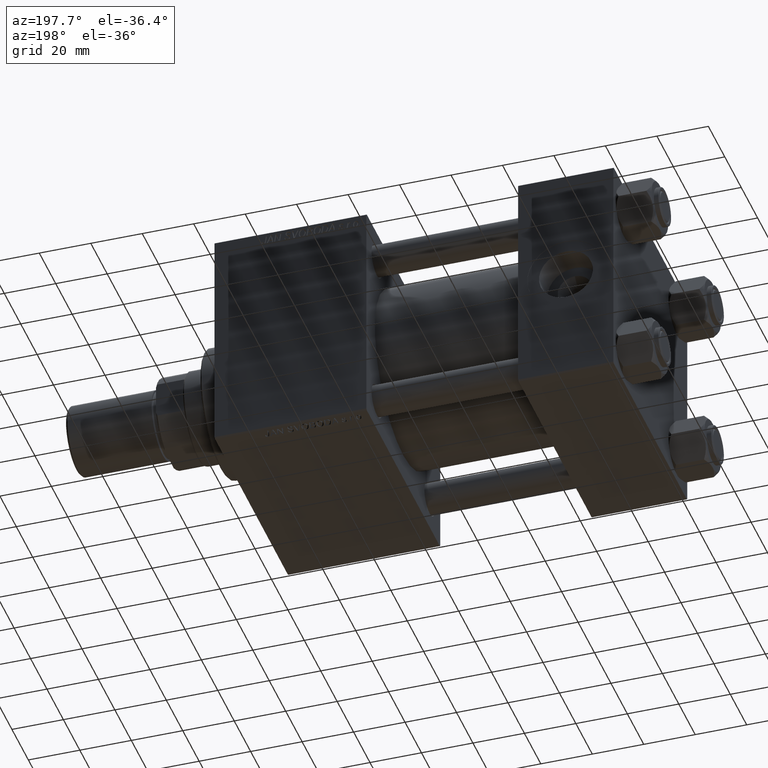
[diagram: clean part render]
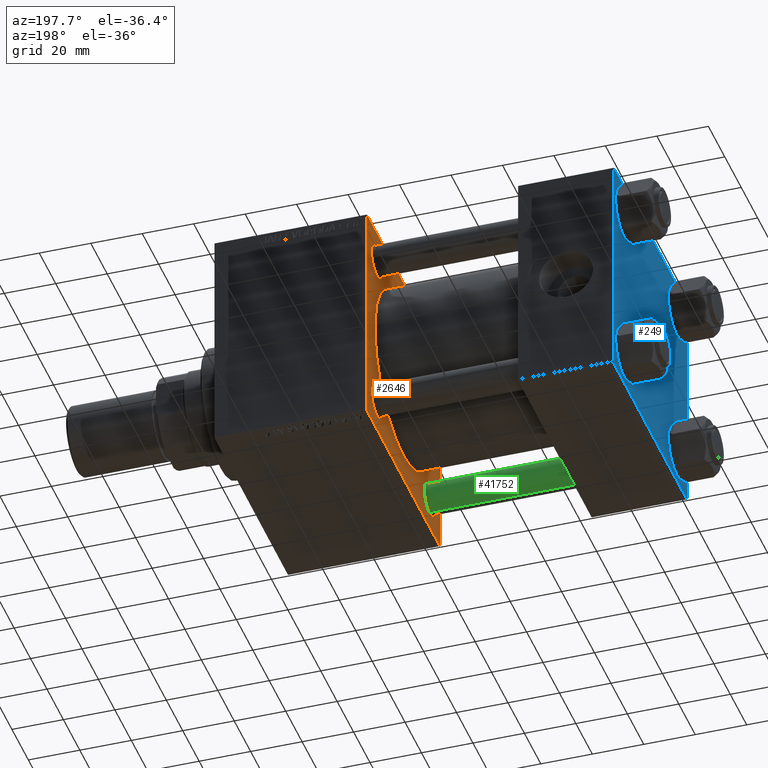
[diagram: same view with three faces highlighted in distinct colors, each labeled with its STEP entity id]
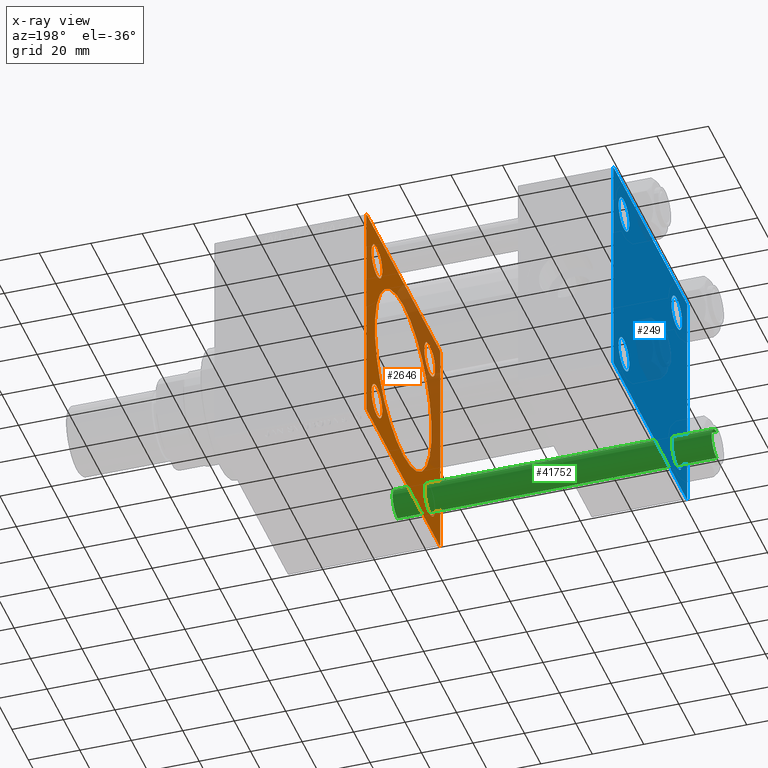
[diagram: x-ray of the same camera — body ghosted, the three highlighted faces saturated]
A machine part, auxiliary view with three faces highlighted in distinct colors.
The next image is the same camera in x-ray (body ghosted, the three faces saturated) — at least one of them is partly hidden behind the body in this view.
Their STEP definitions:

[orange] entity #2646 — the highlighted planar face has unit normal (-1, 0, 0).
#44 = EDGE_CURVE ( 'NONE', #40149, #12854, #29822, .T. ) ;
#64 = CARTESIAN_POINT ( 'NONE',  ( 96.00000000000000000, -44.50000000000000000, 45.00000000000000000 ) ) ;
#516 = VERTEX_POINT ( 'NONE', #28899 ) ;
#825 = CARTESIAN_POINT ( 'NONE',  ( 96.00000000000000000, -32.14999999999997726, -32.15000000000000568 ) ) ;
#902 = LINE ( 'NONE', #48311, #37023 ) ;
#1887 = DIRECTION ( 'NONE',  ( 1.000000000000000000, -0.000000000000000000, 0.000000000000000000 ) ) ;
#2131 = DIRECTION ( 'NONE',  ( 0.000000000000000000, 0.000000000000000000, 1.000000000000000000 ) ) ;
#2427 = LINE ( 'NONE', #7011, #29619 ) ;
#2492 = EDGE_CURVE ( 'NONE', #16709, #37431, #19032, .T. ) ;
#2646 = ADVANCED_FACE ( 'NONE', ( #47948, #32584, #43348, #35668, #28732, #8480 ), #24384, .T. ) ;
#2668 = DIRECTION ( 'NONE',  ( 1.000000000000000000, 0.000000000000000000, 0.000000000000000000 ) ) ;
#2892 = LINE ( 'NONE', #6731, #33566 ) ;
#3622 = VECTOR ( 'NONE', #14967, 1000.000000000000114 ) ;
#4280 = DIRECTION ( 'NONE',  ( 1.000000000000000000, -0.000000000000000000, 0.000000000000000000 ) ) ;
#4644 = DIRECTION ( 'NONE',  ( -0.000000000000000000, 0.000000000000000000, 1.000000000000000000 ) ) ;
#4975 = EDGE_CURVE ( 'NONE', #10743, #13253, #902, .T. ) ;
#5159 = CARTESIAN_POINT ( 'NONE',  ( 96.00000000000000000, 0.000000000000000000, 0.000000000000000000 ) ) ;
#5418 = CARTESIAN_POINT ( 'NONE',  ( 96.00000000000000000, -32.14999999999997726, 32.15000000000000568 ) ) ;
#6157 = CIRCLE ( 'NONE', #11032, 6.500000000000019540 ) ;
#6273 = VECTOR ( 'NONE', #16155, 1000.000000000000000 ) ;
#6731 = CARTESIAN_POINT ( 'NONE',  ( 96.00000000000000000, 45.00000000000000000, -44.99999999999998579 ) ) ;
#6752 = DIRECTION ( 'NONE',  ( 0.000000000000000000, -0.7071067811865474617, 0.7071067811865474617 ) ) ;
#7011 = CARTESIAN_POINT ( 'NONE',  ( 96.00000000000000000, 45.00000000000000000, 45.00000000000001421 ) ) ;
#7839 = ORIENTED_EDGE ( 'NONE', *, *, #8894, .T. ) ;
#8480 = FACE_OUTER_BOUND ( 'NONE', #33915, .T. ) ;
#8894 = EDGE_CURVE ( 'NONE', #13253, #34838, #2427, .T. ) ;
#9172 = VECTOR ( 'NONE', #6752, 1000.000000000000114 ) ;
#9974 = CARTESIAN_POINT ( 'NONE',  ( 96.00000000000000000, -32.14999999999997726, -32.15000000000000568 ) ) ;
#10600 = CARTESIAN_POINT ( 'NONE',  ( 96.00000000000000000, -2.602085213965210642E-15, 0.000000000000000000 ) ) ;
#10743 = VERTEX_POINT ( 'NONE', #39938 ) ;
#10823 = VERTEX_POINT ( 'NONE', #18797 ) ;
#11032 = AXIS2_PLACEMENT_3D ( 'NONE', #5418, #16436, #35934 ) ;
#11218 = DIRECTION ( 'NONE',  ( 1.000000000000000000, -0.000000000000000000, 0.000000000000000000 ) ) ;
#12064 = CARTESIAN_POINT ( 'NONE',  ( 96.00000000000000000, 32.14999999999999147, -38.65000000000001990 ) ) ;
#12108 = ORIENTED_EDGE ( 'NONE', *, *, #50476, .T. ) ;
#12322 = CIRCLE ( 'NONE', #39344, 6.500000000000019540 ) ;
#12814 = LINE ( 'NONE', #47407, #6273 ) ;
#12854 = VERTEX_POINT ( 'NONE', #40515 ) ;
#12882 = AXIS2_PLACEMENT_3D ( 'NONE', #825, #16450, #39025 ) ;
#13253 = VERTEX_POINT ( 'NONE', #49382 ) ;
#13378 = EDGE_LOOP ( 'NONE', ( #45823, #12108 ) ) ;
#13664 = CARTESIAN_POINT ( 'NONE',  ( 96.00000000000000000, 32.14999999999999147, -32.14999999999999858 ) ) ;
#14212 = ORIENTED_EDGE ( 'NONE', *, *, #37870, .T. ) ;
#14569 = DIRECTION ( 'NONE',  ( 0.000000000000000000, 0.000000000000000000, 1.000000000000000000 ) ) ;
#14730 = CARTESIAN_POINT ( 'NONE',  ( 96.00000000000000000, -32.14999999999997726, 38.65000000000002700 ) ) ;
#14919 = CARTESIAN_POINT ( 'NONE',  ( 96.00000000000000000, 32.14999999999999147, 25.64999999999998437 ) ) ;
#14967 = DIRECTION ( 'NONE',  ( -0.000000000000000000, 0.7071067811865474617, 0.7071067811865474617 ) ) ;
#16134 = EDGE_CURVE ( 'NONE', #44072, #516, #33150, .T. ) ;
#16155 = DIRECTION ( 'NONE',  ( 0.000000000000000000, -1.000000000000000000, -1.541976423090495387E-16 ) ) ;
#16436 = DIRECTION ( 'NONE',  ( 1.000000000000000000, -0.000000000000000000, 0.000000000000000000 ) ) ;
#16450 = DIRECTION ( 'NONE',  ( 1.000000000000000000, -0.000000000000000000, 0.000000000000000000 ) ) ;
#16709 = VERTEX_POINT ( 'NONE', #42359 ) ;
#17420 = AXIS2_PLACEMENT_3D ( 'NONE', #5159, #24129, #4644 ) ;
#17882 = DIRECTION ( 'NONE',  ( -0.000000000000000000, -0.7071067811865474617, -0.7071067811865474617 ) ) ;
#18472 = EDGE_LOOP ( 'NONE', ( #44492, #48106 ) ) ;
#18778 = ORIENTED_EDGE ( 'NONE', *, *, #33036, .T. ) ;
#18797 = CARTESIAN_POINT ( 'NONE',  ( 96.00000000000000000, 44.50000000000000000, -44.99999999999998579 ) ) ;
#18832 = LINE ( 'NONE', #33722, #39894 ) ;
#18836 = DIRECTION ( 'NONE',  ( 1.000000000000000000, -0.000000000000000000, 0.000000000000000000 ) ) ;
#18967 = ORIENTED_EDGE ( 'NONE', *, *, #44, .T. ) ;
#19032 = CIRCLE ( 'NONE', #49330, 6.500000000000019540 ) ;
#19216 = ORIENTED_EDGE ( 'NONE', *, *, #4975, .T. ) ;
#19343 = EDGE_CURVE ( 'NONE', #516, #44072, #49613, .T. ) ;
#19575 = CARTESIAN_POINT ( 'NONE',  ( 96.00000000000000000, -44.75000000000001421, 44.75000000000001421 ) ) ;
#19732 = DIRECTION ( 'NONE',  ( 1.000000000000000000, -0.000000000000000000, 0.000000000000000000 ) ) ;
#19784 = VERTEX_POINT ( 'NONE', #39354 ) ;
#19889 = EDGE_CURVE ( 'NONE', #28623, #42799, #50421, .T. ) ;
#20698 = EDGE_CURVE ( 'NONE', #10743, #24065, #12814, .T. ) ;
#20915 = CIRCLE ( 'NONE', #27443, 6.500000000000019540 ) ;
#21279 = DIRECTION ( 'NONE',  ( 0.000000000000000000, 0.000000000000000000, 1.000000000000000000 ) ) ;
#21705 = ORIENTED_EDGE ( 'NONE', *, *, #16134, .T. ) ;
#21717 = CARTESIAN_POINT ( 'NONE',  ( 96.00000000000000000, 44.74999999999999289, -44.74999999999999289 ) ) ;
#22121 = DIRECTION ( 'NONE',  ( 0.000000000000000000, -1.000000000000000000, -1.541976423090495387E-16 ) ) ;
#23317 = CARTESIAN_POINT ( 'NONE',  ( 96.00000000000000000, 32.14999999999999147, 32.14999999999999858 ) ) ;
#23508 = CARTESIAN_POINT ( 'NONE',  ( 96.00000000000000000, -32.14999999999997726, 32.15000000000000568 ) ) ;
#23598 = EDGE_LOOP ( 'NONE', ( #28146, #28670 ) ) ;
#23782 = ORIENTED_EDGE ( 'NONE', *, *, #2492, .T. ) ;
#24065 = VERTEX_POINT ( 'NONE', #64 ) ;
#24129 = DIRECTION ( 'NONE',  ( -1.000000000000000000, 0.000000000000000000, -0.000000000000000000 ) ) ;
#24277 = DIRECTION ( 'NONE',  ( 1.000000000000000000, 0.000000000000000000, 0.000000000000000000 ) ) ;
#24294 = ORIENTED_EDGE ( 'NONE', *, *, #33718, .T. ) ;
#24384 = PLANE ( 'NONE',  #17420 ) ;
#25199 = CIRCLE ( 'NONE', #12882, 6.500000000000019540 ) ;
#25741 = CARTESIAN_POINT ( 'NONE',  ( 96.00000000000000000, -44.75000000000002132, -44.75000000000002132 ) ) ;
#26242 = DIRECTION ( 'NONE',  ( 0.000000000000000000, 0.000000000000000000, -1.000000000000000000 ) ) ;
#26285 = CARTESIAN_POINT ( 'NONE',  ( 96.00000000000000000, 32.14999999999999147, -32.14999999999999858 ) ) ;
#27443 = AXIS2_PLACEMENT_3D ( 'NONE', #23508, #4280, #28115 ) ;
#28111 = CARTESIAN_POINT ( 'NONE',  ( 96.00000000000000000, -2.602085213965210642E-15, 0.000000000000000000 ) ) ;
#28115 = DIRECTION ( 'NONE',  ( 0.000000000000000000, 0.000000000000000000, 1.000000000000000000 ) ) ;
#28146 = ORIENTED_EDGE ( 'NONE', *, *, #48070, .T. ) ;
#28623 = VERTEX_POINT ( 'NONE', #33911 ) ;
#28670 = ORIENTED_EDGE ( 'NONE', *, *, #19889, .T. ) ;
#28732 = FACE_BOUND ( 'NONE', #23598, .T. ) ;
#28899 = CARTESIAN_POINT ( 'NONE',  ( 96.00000000000000000, 32.14999999999999147, 38.65000000000001279 ) ) ;
#29619 = VECTOR ( 'NONE', #45713, 1000.000000000000000 ) ;
#29822 = LINE ( 'NONE', #25741, #9172 ) ;
#32446 = AXIS2_PLACEMENT_3D ( 'NONE', #10600, #2668, #26242 ) ;
#32584 = FACE_BOUND ( 'NONE', #44684, .T. ) ;
#33036 = EDGE_CURVE ( 'NONE', #10823, #40149, #2892, .T. ) ;
#33150 = CIRCLE ( 'NONE', #47871, 6.500000000000012434 ) ;
#33566 = VECTOR ( 'NONE', #22121, 1000.000000000000000 ) ;
#33718 = EDGE_CURVE ( 'NONE', #37431, #16709, #12322, .T. ) ;
#33722 = CARTESIAN_POINT ( 'NONE',  ( 96.00000000000000000, -45.00000000000000000, 45.00000000000000000 ) ) ;
#33911 = CARTESIAN_POINT ( 'NONE',  ( 96.00000000000000000, 1.622946243093158675E-15, -34.50000000000000000 ) ) ;
#33915 = EDGE_LOOP ( 'NONE', ( #18778, #18967, #42169, #14212, #36711, #19216, #7839, #39670 ) ) ;
#34113 = CARTESIAN_POINT ( 'NONE',  ( 96.00000000000000000, -32.14999999999997726, -38.65000000000003411 ) ) ;
#34187 = AXIS2_PLACEMENT_3D ( 'NONE', #28111, #24277, #36069 ) ;
#34729 = DIRECTION ( 'NONE',  ( 0.000000000000000000, 0.000000000000000000, 1.000000000000000000 ) ) ;
#34838 = VERTEX_POINT ( 'NONE', #47988 ) ;
#35668 = FACE_BOUND ( 'NONE', #13378, .T. ) ;
#35934 = DIRECTION ( 'NONE',  ( 0.000000000000000000, 0.000000000000000000, 1.000000000000000000 ) ) ;
#36069 = DIRECTION ( 'NONE',  ( 0.000000000000000000, 0.000000000000000000, -1.000000000000000000 ) ) ;
#36305 = ORIENTED_EDGE ( 'NONE', *, *, #19343, .T. ) ;
#36451 = EDGE_CURVE ( 'NONE', #34838, #10823, #41697, .T. ) ;
#36536 = DIRECTION ( 'NONE',  ( 0.000000000000000000, 0.7071067811865474617, -0.7071067811865474617 ) ) ;
#36711 = ORIENTED_EDGE ( 'NONE', *, *, #20698, .F. ) ;
#37023 = VECTOR ( 'NONE', #36536, 1000.000000000000114 ) ;
#37155 = EDGE_LOOP ( 'NONE', ( #23782, #24294 ) ) ;
#37431 = VERTEX_POINT ( 'NONE', #12064 ) ;
#37870 = EDGE_CURVE ( 'NONE', #39134, #24065, #38801, .T. ) ;
#38347 = AXIS2_PLACEMENT_3D ( 'NONE', #9974, #48943, #21279 ) ;
#38801 = LINE ( 'NONE', #19575, #3622 ) ;
#39025 = DIRECTION ( 'NONE',  ( 0.000000000000000000, 0.000000000000000000, 1.000000000000000000 ) ) ;
#39134 = VERTEX_POINT ( 'NONE', #48220 ) ;
#39344 = AXIS2_PLACEMENT_3D ( 'NONE', #26285, #18836, #34729 ) ;
#39354 = CARTESIAN_POINT ( 'NONE',  ( 96.00000000000000000, -32.14999999999997726, -25.64999999999998437 ) ) ;
#39655 = CARTESIAN_POINT ( 'NONE',  ( 96.00000000000000000, -44.50000000000002842, -45.00000000000000000 ) ) ;
#39670 = ORIENTED_EDGE ( 'NONE', *, *, #36451, .T. ) ;
#39894 = VECTOR ( 'NONE', #49588, 1000.000000000000000 ) ;
#39938 = CARTESIAN_POINT ( 'NONE',  ( 96.00000000000000000, 44.50000000000002842, 45.00000000000001421 ) ) ;
#39957 = VERTEX_POINT ( 'NONE', #14730 ) ;
#40138 = EDGE_CURVE ( 'NONE', #42407, #39957, #20915, .T. ) ;
#40149 = VERTEX_POINT ( 'NONE', #39655 ) ;
#40515 = CARTESIAN_POINT ( 'NONE',  ( 96.00000000000000000, -45.00000000000000000, -44.50000000000002842 ) ) ;
#40812 = CARTESIAN_POINT ( 'NONE',  ( 96.00000000000000000, -2.602085213965210642E-15, 34.50000000000000000 ) ) ;
#41697 = LINE ( 'NONE', #21717, #48513 ) ;
#42169 = ORIENTED_EDGE ( 'NONE', *, *, #48259, .F. ) ;
#42325 = CIRCLE ( 'NONE', #34187, 34.50000000000000000 ) ;
#42359 = CARTESIAN_POINT ( 'NONE',  ( 96.00000000000000000, 32.14999999999999147, -25.64999999999997726 ) ) ;
#42407 = VERTEX_POINT ( 'NONE', #44714 ) ;
#42488 = CARTESIAN_POINT ( 'NONE',  ( 96.00000000000000000, 32.14999999999999147, 32.14999999999999858 ) ) ;
#42799 = VERTEX_POINT ( 'NONE', #40812 ) ;
#43196 = EDGE_CURVE ( 'NONE', #39957, #42407, #6157, .T. ) ;
#43348 = FACE_BOUND ( 'NONE', #37155, .T. ) ;
#43885 = AXIS2_PLACEMENT_3D ( 'NONE', #42488, #11218, #14569 ) ;
#44072 = VERTEX_POINT ( 'NONE', #14919 ) ;
#44492 = ORIENTED_EDGE ( 'NONE', *, *, #43196, .T. ) ;
#44684 = EDGE_LOOP ( 'NONE', ( #36305, #21705 ) ) ;
#44714 = CARTESIAN_POINT ( 'NONE',  ( 96.00000000000000000, -32.14999999999997726, 25.64999999999998437 ) ) ;
#44994 = VERTEX_POINT ( 'NONE', #34113 ) ;
#45713 = DIRECTION ( 'NONE',  ( 0.000000000000000000, 0.000000000000000000, -1.000000000000000000 ) ) ;
#45823 = ORIENTED_EDGE ( 'NONE', *, *, #48684, .T. ) ;
#46483 = CIRCLE ( 'NONE', #38347, 6.500000000000019540 ) ;
#47407 = CARTESIAN_POINT ( 'NONE',  ( 96.00000000000000000, 45.00000000000000000, 45.00000000000001421 ) ) ;
#47871 = AXIS2_PLACEMENT_3D ( 'NONE', #23317, #19732, #50228 ) ;
#47948 = FACE_BOUND ( 'NONE', #18472, .T. ) ;
#47988 = CARTESIAN_POINT ( 'NONE',  ( 96.00000000000000000, 45.00000000000000000, -44.49999999999995737 ) ) ;
#48070 = EDGE_CURVE ( 'NONE', #42799, #28623, #42325, .T. ) ;
#48106 = ORIENTED_EDGE ( 'NONE', *, *, #40138, .T. ) ;
#48220 = CARTESIAN_POINT ( 'NONE',  ( 96.00000000000000000, -45.00000000000000000, 44.50000000000002842 ) ) ;
#48259 = EDGE_CURVE ( 'NONE', #39134, #12854, #18832, .T. ) ;
#48311 = CARTESIAN_POINT ( 'NONE',  ( 96.00000000000000000, 44.75000000000001421, 44.75000000000001421 ) ) ;
#48513 = VECTOR ( 'NONE', #17882, 1000.000000000000114 ) ;
#48684 = EDGE_CURVE ( 'NONE', #19784, #44994, #25199, .T. ) ;
#48943 = DIRECTION ( 'NONE',  ( 1.000000000000000000, -0.000000000000000000, 0.000000000000000000 ) ) ;
#49330 = AXIS2_PLACEMENT_3D ( 'NONE', #13664, #1887, #2131 ) ;
#49382 = CARTESIAN_POINT ( 'NONE',  ( 96.00000000000000000, 45.00000000000000000, 44.50000000000004263 ) ) ;
#49588 = DIRECTION ( 'NONE',  ( 0.000000000000000000, 0.000000000000000000, -1.000000000000000000 ) ) ;
#49613 = CIRCLE ( 'NONE', #43885, 6.500000000000012434 ) ;
#50228 = DIRECTION ( 'NONE',  ( 0.000000000000000000, 0.000000000000000000, 1.000000000000000000 ) ) ;
#50421 = CIRCLE ( 'NONE', #32446, 34.50000000000000000 ) ;
#50476 = EDGE_CURVE ( 'NONE', #44994, #19784, #46483, .T. ) ;

[blue] entity #249 — the highlighted planar face has unit normal (-1, 0, 0).
#249 = ADVANCED_FACE ( 'NONE', ( #48244, #27754, #35708, #44398, #24164 ), #8776, .T. ) ;
#833 = EDGE_CURVE ( 'NONE', #959, #22313, #18176, .T. ) ;
#838 = DIRECTION ( 'NONE',  ( -0.000000000000000000, 0.000000000000000000, 1.000000000000000000 ) ) ;
#959 = VERTEX_POINT ( 'NONE', #25751 ) ;
#1015 = CIRCLE ( 'NONE', #2626, 6.499999999999977796 ) ;
#1031 = EDGE_CURVE ( 'NONE', #32568, #16339, #35374, .T. ) ;
#1933 = DIRECTION ( 'NONE',  ( 0.000000000000000000, 0.000000000000000000, 1.000000000000000000 ) ) ;
#2451 = LINE ( 'NONE', #6285, #50590 ) ;
#2626 = AXIS2_PLACEMENT_3D ( 'NONE', #28023, #4441, #20078 ) ;
#2989 = LINE ( 'NONE', #37350, #19807 ) ;
#3043 = VECTOR ( 'NONE', #50097, 999.9999999999998863 ) ;
#3107 = VECTOR ( 'NONE', #15183, 1000.000000000000000 ) ;
#3338 = VERTEX_POINT ( 'NONE', #35162 ) ;
#3558 = VERTEX_POINT ( 'NONE', #45373 ) ;
#4206 = CARTESIAN_POINT ( 'NONE',  ( 0.000000000000000000, 44.50000000000000000, -44.99999999999999289 ) ) ;
#4441 = DIRECTION ( 'NONE',  ( 1.000000000000000000, -0.000000000000000000, 0.000000000000000000 ) ) ;
#4904 = CARTESIAN_POINT ( 'NONE',  ( 0.000000000000000000, 32.14999999999999147, -25.64999999999997726 ) ) ;
#5261 = DIRECTION ( 'NONE',  ( 1.000000000000000000, -0.000000000000000000, 0.000000000000000000 ) ) ;
#5528 = EDGE_CURVE ( 'NONE', #37629, #47239, #2989, .T. ) ;
#6285 = CARTESIAN_POINT ( 'NONE',  ( 0.000000000000000000, -44.74999999999873523, -44.75000000000122924 ) ) ;
#6606 = LINE ( 'NONE', #17650, #44695 ) ;
#7052 = VERTEX_POINT ( 'NONE', #18506 ) ;
#8776 = PLANE ( 'NONE',  #10771 ) ;
#8873 = LINE ( 'NONE', #24516, #9680 ) ;
#8998 = DIRECTION ( 'NONE',  ( 0.000000000000000000, 0.000000000000000000, 1.000000000000000000 ) ) ;
#9600 = EDGE_CURVE ( 'NONE', #36839, #16236, #1015, .T. ) ;
#9680 = VECTOR ( 'NONE', #40147, 1000.000000000000114 ) ;
#10216 = ORIENTED_EDGE ( 'NONE', *, *, #39925, .T. ) ;
#10326 = CIRCLE ( 'NONE', #38966, 6.500000000000019540 ) ;
#10771 = AXIS2_PLACEMENT_3D ( 'NONE', #40301, #39799, #838 ) ;
#11315 = CARTESIAN_POINT ( 'NONE',  ( 0.000000000000000000, -32.14999999999997726, -32.15000000000000568 ) ) ;
#11397 = DIRECTION ( 'NONE',  ( 1.000000000000000000, -0.000000000000000000, 0.000000000000000000 ) ) ;
#11614 = CARTESIAN_POINT ( 'NONE',  ( 0.000000000000000000, -32.14999999999997726, -38.64999999999998437 ) ) ;
#11846 = CARTESIAN_POINT ( 'NONE',  ( 0.000000000000000000, 44.49999999999997158, 45.00000000000000711 ) ) ;
#13272 = AXIS2_PLACEMENT_3D ( 'NONE', #26998, #19557, #46967 ) ;
#13519 = CIRCLE ( 'NONE', #18452, 6.499999999999977796 ) ;
#13809 = ORIENTED_EDGE ( 'NONE', *, *, #39021, .F. ) ;
#14998 = DIRECTION ( 'NONE',  ( 1.000000000000000000, -0.000000000000000000, 0.000000000000000000 ) ) ;
#15002 = CARTESIAN_POINT ( 'NONE',  ( 0.000000000000000000, -32.14999999999997726, 32.15000000000000568 ) ) ;
#15183 = DIRECTION ( 'NONE',  ( 0.000000000000000000, -1.000000000000000000, -7.709882115452476934E-17 ) ) ;
#15673 = LINE ( 'NONE', #23629, #24988 ) ;
#16236 = VERTEX_POINT ( 'NONE', #32291 ) ;
#16339 = VERTEX_POINT ( 'NONE', #26118 ) ;
#16567 = EDGE_LOOP ( 'NONE', ( #34819, #27021 ) ) ;
#16754 = EDGE_LOOP ( 'NONE', ( #39590, #47371, #29702, #23562, #37373, #19586, #13809, #26890 ) ) ;
#16874 = VERTEX_POINT ( 'NONE', #11846 ) ;
#17650 = CARTESIAN_POINT ( 'NONE',  ( 0.000000000000000000, 45.00000000000000000, 45.00000000000000711 ) ) ;
#18116 = DIRECTION ( 'NONE',  ( -0.000000000000000000, 0.7071067811865474617, 0.7071067811865474617 ) ) ;
#18176 = CIRCLE ( 'NONE', #23885, 6.500000000000019540 ) ;
#18452 = AXIS2_PLACEMENT_3D ( 'NONE', #18830, #26525, #38072 ) ;
#18506 = CARTESIAN_POINT ( 'NONE',  ( 0.000000000000000000, -45.00000000000000000, -44.49999999999997158 ) ) ;
#18830 = CARTESIAN_POINT ( 'NONE',  ( 0.000000000000000000, -32.14999999999997726, -32.15000000000000568 ) ) ;
#19090 = LINE ( 'NONE', #27544, #3043 ) ;
#19557 = DIRECTION ( 'NONE',  ( 1.000000000000000000, -0.000000000000000000, 0.000000000000000000 ) ) ;
#19586 = ORIENTED_EDGE ( 'NONE', *, *, #5528, .T. ) ;
#19807 = VECTOR ( 'NONE', #18116, 1000.000000000000114 ) ;
#20078 = DIRECTION ( 'NONE',  ( 0.000000000000000000, 0.000000000000000000, 1.000000000000000000 ) ) ;
#21917 = VERTEX_POINT ( 'NONE', #11614 ) ;
#22313 = VERTEX_POINT ( 'NONE', #4904 ) ;
#22381 = LINE ( 'NONE', #44958, #3107 ) ;
#22869 = CIRCLE ( 'NONE', #37632, 6.499999999999977796 ) ;
#23132 = AXIS2_PLACEMENT_3D ( 'NONE', #44613, #36935, #8998 ) ;
#23288 = EDGE_CURVE ( 'NONE', #3558, #41902, #6606, .T. ) ;
#23445 = CARTESIAN_POINT ( 'NONE',  ( 0.000000000000000000, 32.14999999999999147, 32.14999999999999858 ) ) ;
#23452 = DIRECTION ( 'NONE',  ( 0.000000000000000000, 0.000000000000000000, 1.000000000000000000 ) ) ;
#23562 = ORIENTED_EDGE ( 'NONE', *, *, #28283, .T. ) ;
#23629 = CARTESIAN_POINT ( 'NONE',  ( 0.000000000000000000, 45.00000000000000000, 45.00000000000000711 ) ) ;
#23885 = AXIS2_PLACEMENT_3D ( 'NONE', #40879, #5261, #1933 ) ;
#24164 = FACE_OUTER_BOUND ( 'NONE', #16754, .T. ) ;
#24328 = ORIENTED_EDGE ( 'NONE', *, *, #833, .T. ) ;
#24516 = CARTESIAN_POINT ( 'NONE',  ( 0.000000000000000000, 44.74999999999999289, -44.74999999999999289 ) ) ;
#24771 = EDGE_LOOP ( 'NONE', ( #39778, #24328 ) ) ;
#24988 = VECTOR ( 'NONE', #31311, 1000.000000000000000 ) ;
#25548 = LINE ( 'NONE', #48864, #43034 ) ;
#25751 = CARTESIAN_POINT ( 'NONE',  ( 0.000000000000000000, 32.14999999999999147, -38.65000000000001990 ) ) ;
#26118 = CARTESIAN_POINT ( 'NONE',  ( 0.000000000000000000, 32.14999999999999147, 25.64999999999997726 ) ) ;
#26181 = CARTESIAN_POINT ( 'NONE',  ( 0.000000000000000000, 45.00000000000000000, -44.49999999999996447 ) ) ;
#26525 = DIRECTION ( 'NONE',  ( 1.000000000000000000, -0.000000000000000000, 0.000000000000000000 ) ) ;
#26890 = ORIENTED_EDGE ( 'NONE', *, *, #49108, .T. ) ;
#26998 = CARTESIAN_POINT ( 'NONE',  ( 0.000000000000000000, 32.14999999999999147, 32.14999999999999858 ) ) ;
#27021 = ORIENTED_EDGE ( 'NONE', *, *, #45782, .T. ) ;
#27472 = EDGE_LOOP ( 'NONE', ( #10216, #37771 ) ) ;
#27544 = CARTESIAN_POINT ( 'NONE',  ( 0.000000000000000000, 44.74999999999936762, 44.75000000000061107 ) ) ;
#27754 = FACE_BOUND ( 'NONE', #27472, .T. ) ;
#28023 = CARTESIAN_POINT ( 'NONE',  ( 0.000000000000000000, -32.14999999999997726, 32.15000000000000568 ) ) ;
#28234 = EDGE_CURVE ( 'NONE', #41902, #32909, #8873, .T. ) ;
#28283 = EDGE_CURVE ( 'NONE', #35136, #7052, #2451, .T. ) ;
#28426 = ORIENTED_EDGE ( 'NONE', *, *, #9600, .T. ) ;
#29702 = ORIENTED_EDGE ( 'NONE', *, *, #49322, .T. ) ;
#31311 = DIRECTION ( 'NONE',  ( 0.000000000000000000, -1.000000000000000000, -2.312964634635742957E-16 ) ) ;
#31934 = CARTESIAN_POINT ( 'NONE',  ( 0.000000000000000000, -45.00000000000000000, 44.49999999999998579 ) ) ;
#32030 = EDGE_CURVE ( 'NONE', #21917, #3338, #22869, .T. ) ;
#32291 = CARTESIAN_POINT ( 'NONE',  ( 0.000000000000000000, -32.14999999999997726, 38.64999999999999147 ) ) ;
#32568 = VERTEX_POINT ( 'NONE', #43551 ) ;
#32582 = AXIS2_PLACEMENT_3D ( 'NONE', #15002, #11397, #23452 ) ;
#32666 = ORIENTED_EDGE ( 'NONE', *, *, #49835, .T. ) ;
#32909 = VERTEX_POINT ( 'NONE', #4206 ) ;
#33088 = CARTESIAN_POINT ( 'NONE',  ( 0.000000000000000000, -32.14999999999997726, 25.65000000000002700 ) ) ;
#34819 = ORIENTED_EDGE ( 'NONE', *, *, #1031, .T. ) ;
#35136 = VERTEX_POINT ( 'NONE', #39486 ) ;
#35162 = CARTESIAN_POINT ( 'NONE',  ( 0.000000000000000000, -32.14999999999997726, -25.65000000000002700 ) ) ;
#35374 = CIRCLE ( 'NONE', #13272, 6.500000000000019540 ) ;
#35708 = FACE_BOUND ( 'NONE', #24771, .T. ) ;
#36589 = DIRECTION ( 'NONE',  ( 0.000000000000000000, 0.000000000000000000, -1.000000000000000000 ) ) ;
#36839 = VERTEX_POINT ( 'NONE', #33088 ) ;
#36840 = EDGE_CURVE ( 'NONE', #22313, #959, #45244, .T. ) ;
#36935 = DIRECTION ( 'NONE',  ( 1.000000000000000000, -0.000000000000000000, 0.000000000000000000 ) ) ;
#37350 = CARTESIAN_POINT ( 'NONE',  ( -0.000000000000000000, -44.74999999999999289, 44.74999999999999289 ) ) ;
#37373 = ORIENTED_EDGE ( 'NONE', *, *, #41062, .F. ) ;
#37629 = VERTEX_POINT ( 'NONE', #31934 ) ;
#37632 = AXIS2_PLACEMENT_3D ( 'NONE', #11315, #50527, #42085 ) ;
#37771 = ORIENTED_EDGE ( 'NONE', *, *, #32030, .T. ) ;
#38072 = DIRECTION ( 'NONE',  ( 0.000000000000000000, 0.000000000000000000, 1.000000000000000000 ) ) ;
#38315 = CARTESIAN_POINT ( 'NONE',  ( 0.000000000000000000, -44.49999999999997158, 44.99999999999998579 ) ) ;
#38387 = DIRECTION ( 'NONE',  ( 0.000000000000000000, 0.000000000000000000, -1.000000000000000000 ) ) ;
#38829 = DIRECTION ( 'NONE',  ( 0.000000000000000000, 0.000000000000000000, 1.000000000000000000 ) ) ;
#38966 = AXIS2_PLACEMENT_3D ( 'NONE', #23445, #14998, #38829 ) ;
#39021 = EDGE_CURVE ( 'NONE', #16874, #47239, #15673, .T. ) ;
#39486 = CARTESIAN_POINT ( 'NONE',  ( 0.000000000000000000, -44.49999999999994316, -45.00000000000000000 ) ) ;
#39590 = ORIENTED_EDGE ( 'NONE', *, *, #23288, .T. ) ;
#39778 = ORIENTED_EDGE ( 'NONE', *, *, #36840, .T. ) ;
#39799 = DIRECTION ( 'NONE',  ( -1.000000000000000000, 0.000000000000000000, -0.000000000000000000 ) ) ;
#39925 = EDGE_CURVE ( 'NONE', #3338, #21917, #13519, .T. ) ;
#40147 = DIRECTION ( 'NONE',  ( -0.000000000000000000, -0.7071067811865474617, -0.7071067811865474617 ) ) ;
#40301 = CARTESIAN_POINT ( 'NONE',  ( 0.000000000000000000, 0.000000000000000000, 0.000000000000000000 ) ) ;
#40405 = EDGE_LOOP ( 'NONE', ( #32666, #28426 ) ) ;
#40879 = CARTESIAN_POINT ( 'NONE',  ( 0.000000000000000000, 32.14999999999999147, -32.14999999999999858 ) ) ;
#41062 = EDGE_CURVE ( 'NONE', #37629, #7052, #25548, .T. ) ;
#41902 = VERTEX_POINT ( 'NONE', #26181 ) ;
#42085 = DIRECTION ( 'NONE',  ( 0.000000000000000000, 0.000000000000000000, 1.000000000000000000 ) ) ;
#43034 = VECTOR ( 'NONE', #36589, 1000.000000000000000 ) ;
#43551 = CARTESIAN_POINT ( 'NONE',  ( 0.000000000000000000, 32.14999999999999147, 38.65000000000001990 ) ) ;
#44398 = FACE_BOUND ( 'NONE', #16567, .T. ) ;
#44613 = CARTESIAN_POINT ( 'NONE',  ( 0.000000000000000000, 32.14999999999999147, -32.14999999999999858 ) ) ;
#44695 = VECTOR ( 'NONE', #38387, 1000.000000000000000 ) ;
#44958 = CARTESIAN_POINT ( 'NONE',  ( 0.000000000000000000, 45.00000000000000000, -44.99999999999999289 ) ) ;
#45240 = DIRECTION ( 'NONE',  ( 0.000000000000000000, -0.7071067811865672237, 0.7071067811865279218 ) ) ;
#45244 = CIRCLE ( 'NONE', #23132, 6.500000000000019540 ) ;
#45373 = CARTESIAN_POINT ( 'NONE',  ( 0.000000000000000000, 45.00000000000000000, 44.49999999999999289 ) ) ;
#45782 = EDGE_CURVE ( 'NONE', #16339, #32568, #10326, .T. ) ;
#46967 = DIRECTION ( 'NONE',  ( 0.000000000000000000, 0.000000000000000000, 1.000000000000000000 ) ) ;
#47239 = VERTEX_POINT ( 'NONE', #38315 ) ;
#47371 = ORIENTED_EDGE ( 'NONE', *, *, #28234, .T. ) ;
#48244 = FACE_BOUND ( 'NONE', #40405, .T. ) ;
#48864 = CARTESIAN_POINT ( 'NONE',  ( 0.000000000000000000, -45.00000000000000000, 44.99999999999998579 ) ) ;
#48925 = CIRCLE ( 'NONE', #32582, 6.499999999999977796 ) ;
#49108 = EDGE_CURVE ( 'NONE', #16874, #3558, #19090, .T. ) ;
#49322 = EDGE_CURVE ( 'NONE', #32909, #35136, #22381, .T. ) ;
#49835 = EDGE_CURVE ( 'NONE', #16236, #36839, #48925, .T. ) ;
#50097 = DIRECTION ( 'NONE',  ( 0.000000000000000000, 0.7071067811865574537, -0.7071067811865376918 ) ) ;
#50527 = DIRECTION ( 'NONE',  ( 1.000000000000000000, -0.000000000000000000, 0.000000000000000000 ) ) ;
#50590 = VECTOR ( 'NONE', #45240, 1000.000000000000000 ) ;

[green] entity #41752 — the highlighted cylindrical surface (edge-blend (fillet) strip) has radius 6 mm, axis along (-1, 0, -0).
#860 = VERTEX_POINT ( 'NONE', #36031 ) ;
#2429 = EDGE_CURVE ( 'NONE', #38529, #48541, #41148, .T. ) ;
#3415 = CARTESIAN_POINT ( 'NONE',  ( -6.000000000000000888, 0.000000000000000000, 125.0000000000000000 ) ) ;
#4586 = CARTESIAN_POINT ( 'NONE',  ( 6.000000000000000888, 7.347880794884120722E-16, 124.5000000000000000 ) ) ;
#5061 = VERTEX_POINT ( 'NONE', #49987 ) ;
#6222 = EDGE_LOOP ( 'NONE', ( #30719, #32620, #25881, #45110 ) ) ;
#8121 = AXIS2_PLACEMENT_3D ( 'NONE', #14198, #29842, #41376 ) ;
#8508 = DIRECTION ( 'NONE',  ( -1.000000000000000000, 0.000000000000000000, 0.000000000000000000 ) ) ;
#8540 = DIRECTION ( 'NONE',  ( 0.000000000000000000, 0.000000000000000000, -1.000000000000000000 ) ) ;
#8803 = CARTESIAN_POINT ( 'NONE',  ( 0.000000000000000000, 0.000000000000000000, 124.5000000000000000 ) ) ;
#10045 = AXIS2_PLACEMENT_3D ( 'NONE', #8803, #8540, #36747 ) ;
#10586 = CARTESIAN_POINT ( 'NONE',  ( -6.000000000000000888, 0.000000000000000000, 124.5000000000000000 ) ) ;
#12346 = FACE_OUTER_BOUND ( 'NONE', #6222, .T. ) ;
#14198 = CARTESIAN_POINT ( 'NONE',  ( 0.000000000000000000, 0.000000000000000000, 0.4999999999999865663 ) ) ;
#18582 = EDGE_CURVE ( 'NONE', #38529, #5061, #27871, .T. ) ;
#20984 = EDGE_CURVE ( 'NONE', #48541, #860, #39051, .T. ) ;
#22662 = VECTOR ( 'NONE', #31093, 1000.000000000000000 ) ;
#23775 = DIRECTION ( 'NONE',  ( -0.000000000000000000, -0.000000000000000000, -1.000000000000000000 ) ) ;
#24501 = CIRCLE ( 'NONE', #8121, 6.000000000000000888 ) ;
#25881 = ORIENTED_EDGE ( 'NONE', *, *, #20984, .T. ) ;
#27871 = LINE ( 'NONE', #46816, #40605 ) ;
#27995 = CARTESIAN_POINT ( 'NONE',  ( 0.000000000000000000, 0.000000000000000000, 125.0000000000000000 ) ) ;
#29842 = DIRECTION ( 'NONE',  ( -0.000000000000000000, -0.000000000000000000, 1.000000000000000000 ) ) ;
#30522 = EDGE_CURVE ( 'NONE', #860, #5061, #24501, .T. ) ;
#30719 = ORIENTED_EDGE ( 'NONE', *, *, #18582, .F. ) ;
#31093 = DIRECTION ( 'NONE',  ( -0.000000000000000000, -0.000000000000000000, -1.000000000000000000 ) ) ;
#32620 = ORIENTED_EDGE ( 'NONE', *, *, #2429, .T. ) ;
#35699 = CYLINDRICAL_SURFACE ( 'NONE', #46309, 6.000000000000000888 ) ;
#36031 = CARTESIAN_POINT ( 'NONE',  ( -6.000000000000000888, 0.000000000000000000, 0.4999999999999865663 ) ) ;
#36747 = DIRECTION ( 'NONE',  ( 1.000000000000000000, 0.000000000000000000, 0.000000000000000000 ) ) ;
#38529 = VERTEX_POINT ( 'NONE', #4586 ) ;
#39051 = LINE ( 'NONE', #3415, #22662 ) ;
#40605 = VECTOR ( 'NONE', #23775, 1000.000000000000000 ) ;
#41148 = CIRCLE ( 'NONE', #10045, 6.000000000000000888 ) ;
#41376 = DIRECTION ( 'NONE',  ( 1.000000000000000000, 0.000000000000000000, 0.000000000000000000 ) ) ;
#41752 = ADVANCED_FACE ( 'NONE', ( #12346 ), #35699, .T. ) ;
#43626 = DIRECTION ( 'NONE',  ( -0.000000000000000000, -0.000000000000000000, -1.000000000000000000 ) ) ;
#45110 = ORIENTED_EDGE ( 'NONE', *, *, #30522, .T. ) ;
#46309 = AXIS2_PLACEMENT_3D ( 'NONE', #27995, #43626, #8508 ) ;
#46816 = CARTESIAN_POINT ( 'NONE',  ( 6.000000000000000888, 7.347880794884120722E-16, 125.0000000000000000 ) ) ;
#48541 = VERTEX_POINT ( 'NONE', #10586 ) ;
#49987 = CARTESIAN_POINT ( 'NONE',  ( 6.000000000000000888, 7.347880794884120722E-16, 0.4999999999999865663 ) ) ;